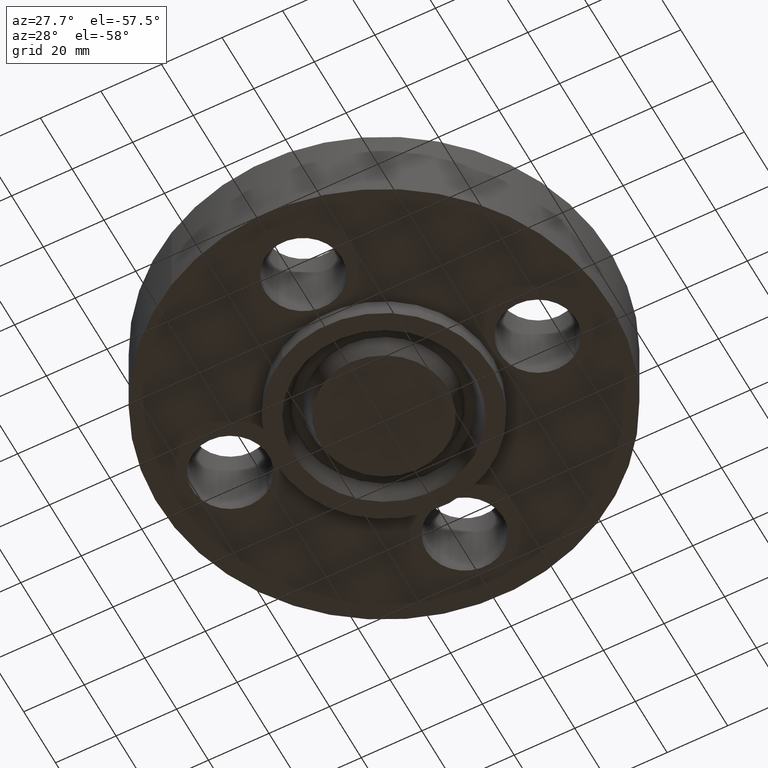
[diagram: clean part render]
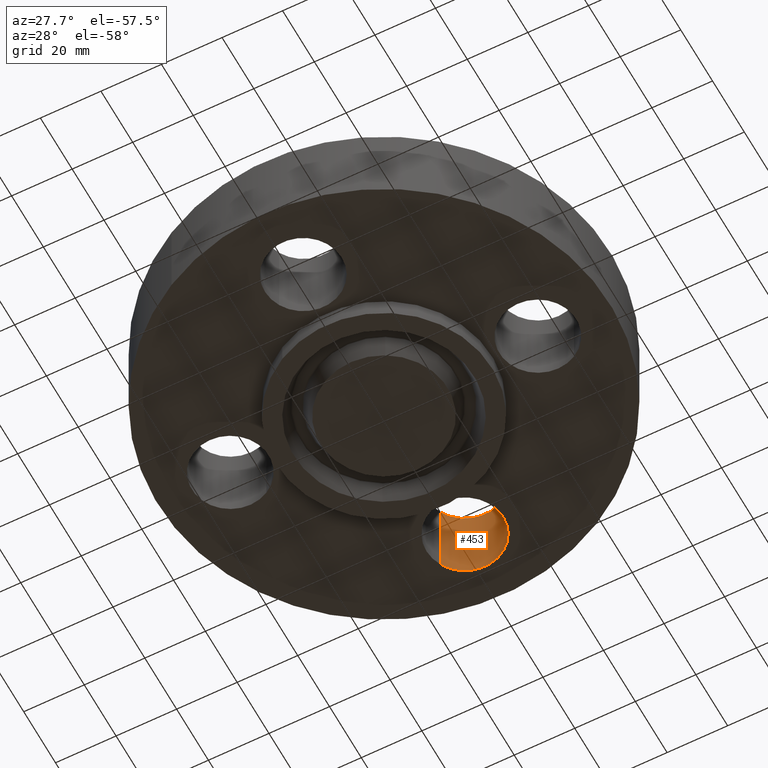
[diagram: same view with one face highlighted and labeled with its STEP entity id]
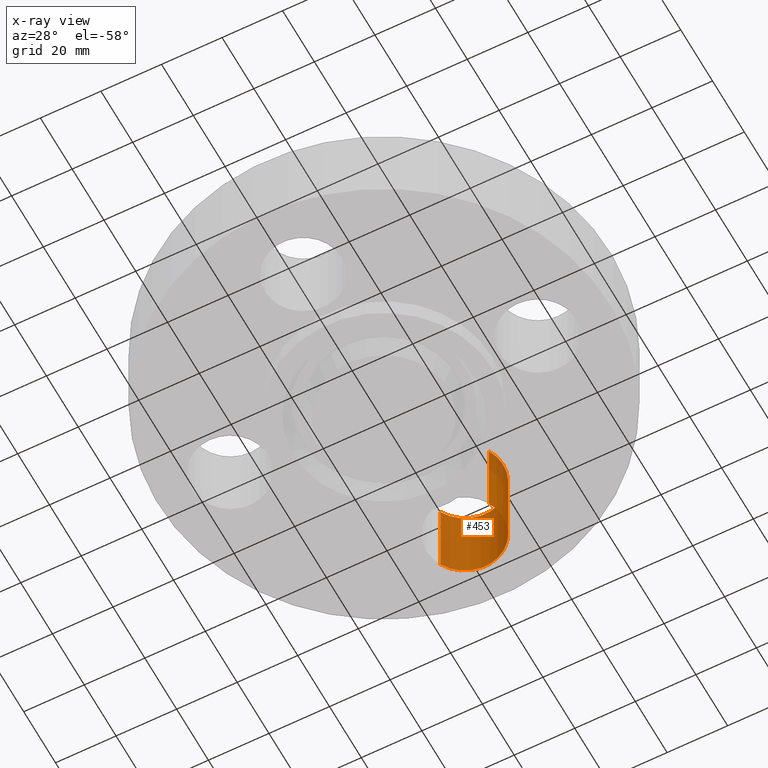
[diagram: x-ray of the same camera — body ghosted, the highlighted face saturated]
A machine part, auxiliary view. The second image highlights one B-rep face of the part: STEP entity #453.
The next image is the same camera in x-ray: the body ghosted, the highlighted face saturated — about 8% of this face is hidden behind the body in this view.
In plain terms, the highlighted cylindrical surface (partial cylindrical patch) has radius 12.7 mm, axis along (0, -0, -1).
Its self-contained STEP definition (entity closure, byte-faithful):
#301=AXIS2_PLACEMENT_3D('Circle Axis2P3D',#299,#300,$) ;
#414=AXIS2_PLACEMENT_3D('Cylinder Axis2P3D',#411,#412,#413) ;
#444=AXIS2_PLACEMENT_3D('Circle Axis2P3D',#442,#443,$) ;
#294=CARTESIAN_POINT('Vertex',(0.438791280947,1.7602872307,0.)) ;
#296=CARTESIAN_POINT('Vertex',(-0.438791280947,2.23971276931,0.)) ;
#299=CARTESIAN_POINT('Axis2P3D Location',(5.24514814784E-017,2.00000000001,0.)) ;
#411=CARTESIAN_POINT('Axis2P3D Location',(0.,2.00000000001,1.11606299213)) ;
#416=CARTESIAN_POINT('Line Origine',(0.438791280947,1.7602872307,0.560000000002)) ;
#420=CARTESIAN_POINT('Vertex',(0.438791280947,1.7602872307,1.12)) ;
#423=CARTESIAN_POINT('Line Origine',(-0.438791280947,2.23971276931,0.560000000002)) ;
#427=CARTESIAN_POINT('Vertex',(-0.438791280947,2.23971276931,1.12)) ;
#442=CARTESIAN_POINT('Axis2P3D Location',(0.,2.00000000001,1.12)) ;
#300=DIRECTION('Axis2P3D Direction',(0.,0.,-0.0393700787402)) ;
#412=DIRECTION('Axis2P3D Direction',(0.,-0.,-0.0393700787402)) ;
#413=DIRECTION('Axis2P3D XDirection',(-0.0345504945626,0.0188750212049,0.)) ;
#417=DIRECTION('Vector Direction',(0.,0.,-0.0393700787402)) ;
#424=DIRECTION('Vector Direction',(0.,0.,-0.0393700787402)) ;
#443=DIRECTION('Axis2P3D Direction',(0.,-0.,-0.0393700787402)) ;
#418=VECTOR('Line Direction',#417,0.0393700787402) ;
#425=VECTOR('Line Direction',#424,0.0393700787402) ;
#448=ORIENTED_EDGE('',*,*,#429,.F.) ;
#449=ORIENTED_EDGE('',*,*,#303,.T.) ;
#450=ORIENTED_EDGE('',*,*,#422,.T.) ;
#451=ORIENTED_EDGE('',*,*,#446,.F.) ;
#453=ADVANCED_FACE('PartBody',(#452),#415,.F.) ;
#302=CIRCLE('generated circle',#301,0.500000000002) ;
#445=CIRCLE('generated circle',#444,0.500000000002) ;
#415=CYLINDRICAL_SURFACE('generated cylinder',#414,0.500000000002) ;
#303=EDGE_CURVE('',#297,#295,#302,.T.) ;
#422=EDGE_CURVE('',#295,#421,#419,.F.) ;
#429=EDGE_CURVE('',#297,#428,#426,.F.) ;
#446=EDGE_CURVE('',#428,#421,#445,.T.) ;
#447=EDGE_LOOP('',(#448,#449,#450,#451)) ;
#452=FACE_OUTER_BOUND('',#447,.T.) ;
#419=LINE('Line',#416,#418) ;
#426=LINE('Line',#423,#425) ;
#295=VERTEX_POINT('',#294) ;
#297=VERTEX_POINT('',#296) ;
#421=VERTEX_POINT('',#420) ;
#428=VERTEX_POINT('',#427) ;